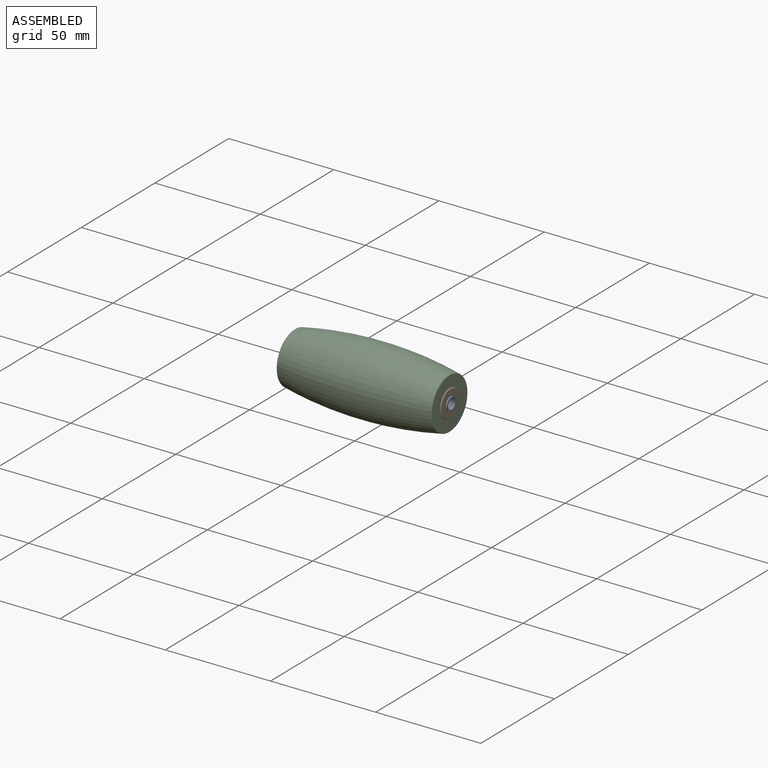
[diagram: assembled view]
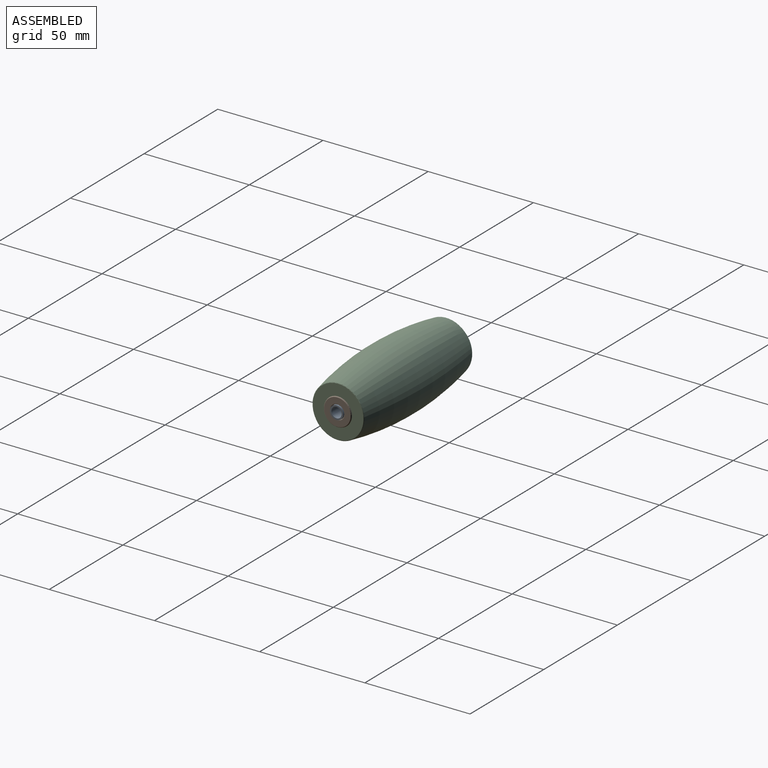
[diagram: assembled view, second angle]
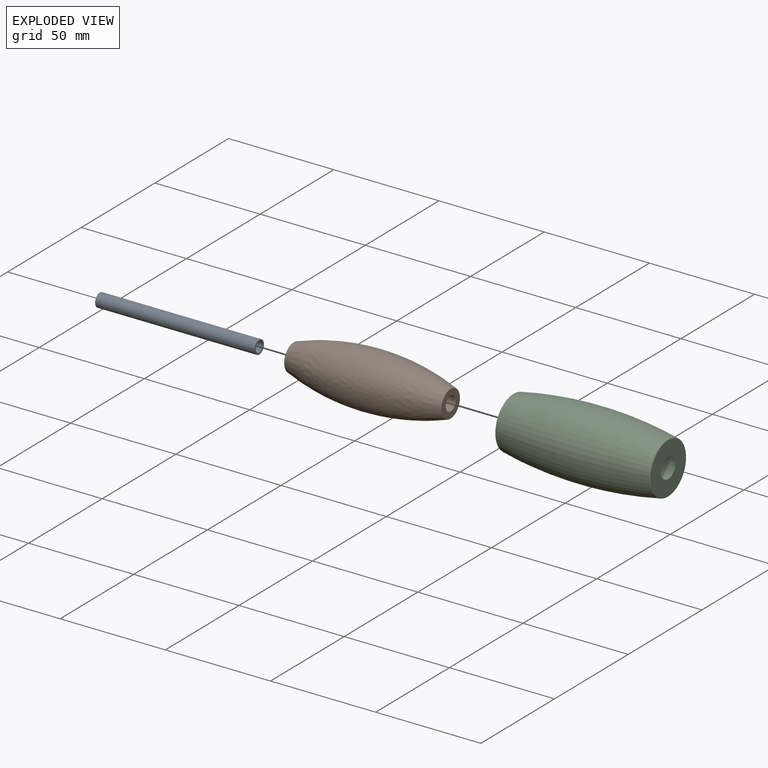
[diagram: exploded view]
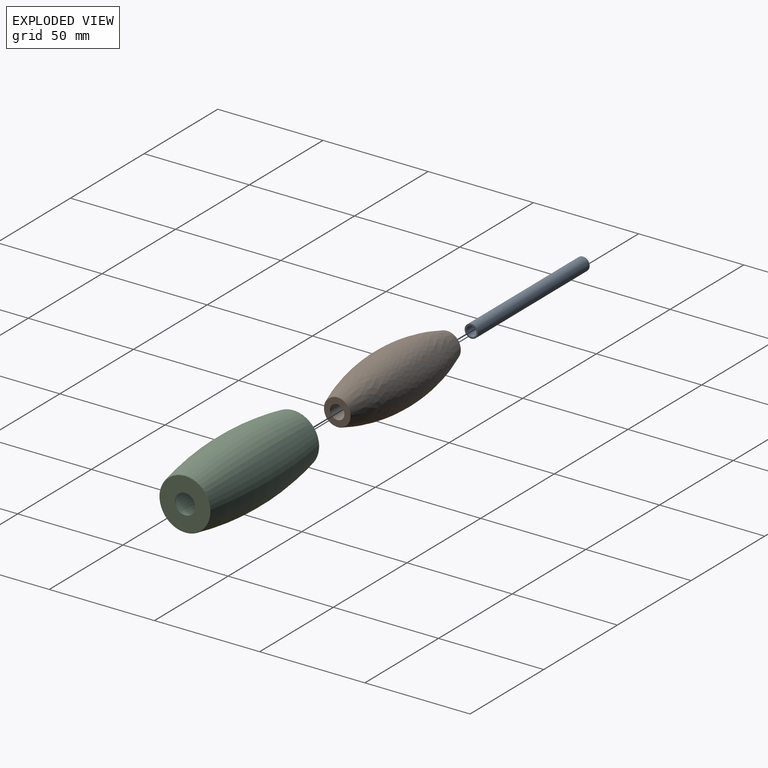
[diagram: exploded view, second angle]
ASSEMBLY  parts=3 mates=2
PART A: 4 faces, bbox 6.4x6.4x75.8 mm
  f0: cylinder r=2.44mm len=75.79mm, axis (0,0,-1), area 1161.2mm2, adj f2,f3
  f1: cylinder r=3.17mm len=75.79mm, axis (0,0,-1), area 1512mm2, adj f2,f3
  f2: plane 6.35x6.35mm, normal (0,0,1), area 13mm2, adj f0,f1
  f3: plane 6.35x6.35mm, normal (0,0,-1), area 13mm2, adj f0,f1
PART B: 8 faces, bbox 74.7x25.4x25.4 mm
  f0: torus R=6.25mm, axis (-1,0,0), area 12.6mm2, adj f5,f6
  f1: torus R=3.48mm, axis (-1,0,0), area 8.3mm2, adj f4,f6
  f2: torus R=3.48mm, axis (1,0,0), area 8.3mm2, adj f4,f7
  f3: torus R=6.25mm, axis (1,0,0), area 12.6mm2, adj f5,f7
  f4: cylinder r=3.23mm len=74.17mm, axis (1,0,0), area 1503.3mm2, adj f1,f2
  f5: revolved ~74.33x25.4mm, area 10105.6mm2, adj f0,f3
  f6: plane 12.5x12.5mm, normal (-1,0,0), area 84.6mm2, adj f0,f1
  f7: plane 12.5x12.5mm, normal (1,0,0), area 84.6mm2, adj f2,f3
PART C: 10 faces, bbox 73.7x31.8x31.8 mm
  f0: revolved ~73.24x31.75mm, area 3398.7mm2, adj f1,f2,f6
  f1: torus R=12.04mm, axis (-1,0,0), area 27.1mm2, adj f0,f6,f8
  f2: torus R=12.04mm, axis (-1,0,0), area 27.1mm2, adj f0,f6,f9
  f3: torus R=6.25mm, axis (1,0,0), area 12.6mm2, adj f4,f7
  f4: revolved ~73.23x25.4mm, area 5004.2mm2, adj f3,f8
  f5: cylinder r=4.76mm len=9.53mm, axis (-1,0,0), area 7.6mm2, adj f7,f9
  f6: revolved ~73.24x31.75mm, area 3398.7mm2, adj f0,f1,f2
  f7: plane 12.5x12.5mm, normal (-1,0,0), area 51.4mm2, adj f3,f5
  f8: plane 24.07x24.07mm, normal (-1,0,0), area 307.3mm2, adj f1,f4
  f9: plane 24.07x24.07mm, normal (1,0,0), area 383.9mm2, adj f2,f5
PLACE A rot(axis=(0.71,0.03,0.71),176.6deg) t=(-43.19,19.34,44.37)mm
PLACE B rot(axis=(-1,0,0),4.9deg) t=(-5.29,19.34,44.37)mm
PLACE C rot(axis=(-1,0,0),4.9deg) t=(-5.29,19.34,44.37)mm
MATE fastened B.f4 <-> A.f0  axis (1,0,0) through (-5.29,19.34,44.37)mm
MATE fastened B.f4 <-> C.f1  axis (1,0,0) through (-5.29,19.34,44.37)mm
